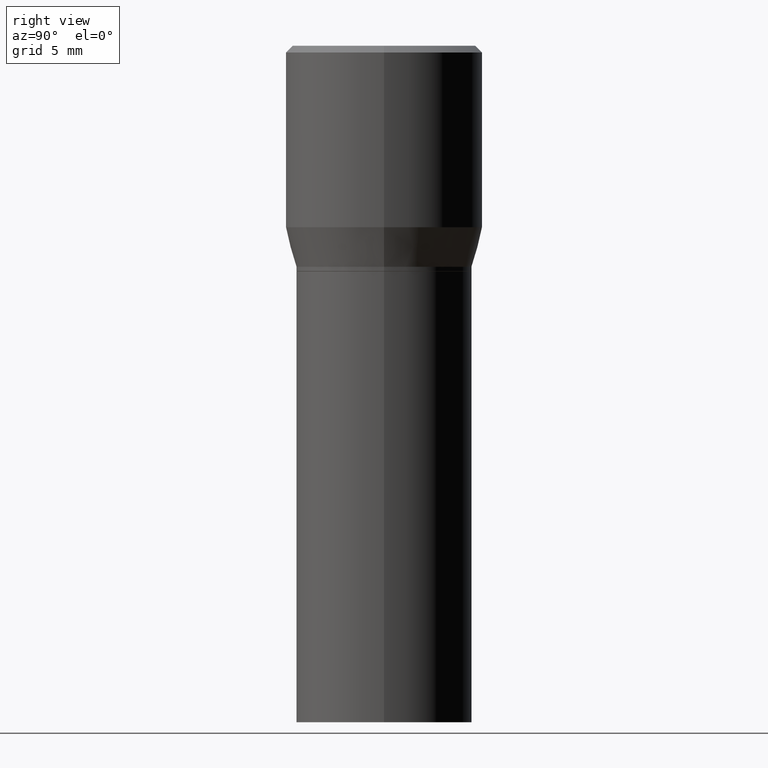
[diagram: clean part render]
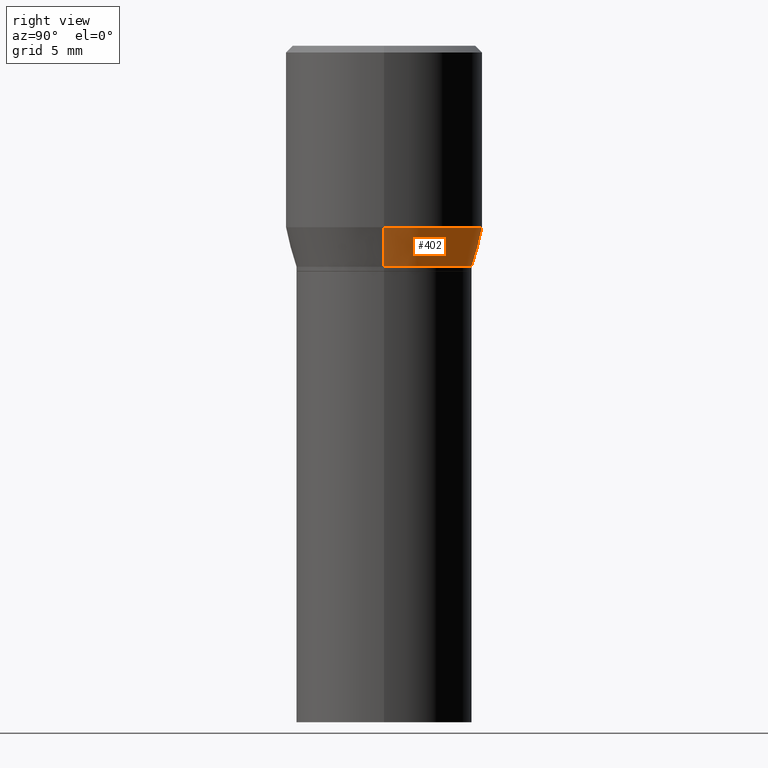
[diagram: same view with one face highlighted and labeled with its STEP entity id]
A machine part, right view. The second image highlights one B-rep face of the part: STEP entity #402.
In plain terms, the highlighted conical surface has half-angle 15 deg.
Its self-contained STEP definition (entity closure, byte-faithful):
#10 = DIRECTION ( 'NONE',  ( -0.2588190451025214611, 5.211531920934551042E-15, 0.9659258262890682012 ) ) ;
#43 = DIRECTION ( 'NONE',  ( 1.000000000000000000, -6.982962677686265922E-15, 0.000000000000000000 ) ) ;
#48 = DIRECTION ( 'NONE',  ( 0.2588190451025214611, 1.565188264969621573E-15, 0.9659258262890682012 ) ) ;
#88 = CARTESIAN_POINT ( 'NONE',  ( 1.198279715030717173E-29, -1.710825856033141537E-15, -0.4900000000000001021 ) ) ;
#101 = CIRCLE ( 'NONE', #382, 0.1952999999999999736 ) ;
#148 = DIRECTION ( 'NONE',  ( -2.445468806185136597E-29, 3.491481338843145583E-15, 1.000000000000000000 ) ) ;
#152 = VERTEX_POINT ( 'NONE', #261 ) ;
#163 = VERTEX_POINT ( 'NONE', #376 ) ;
#165 = EDGE_CURVE ( 'NONE', #152, #163, #101, .T. ) ;
#181 = CIRCLE ( 'NONE', #303, 0.2187500000000000000 ) ;
#185 = DIRECTION ( 'NONE',  ( 1.000000000000000000, -6.982962677686266711E-15, 0.000000000000000000 ) ) ;
#186 = EDGE_LOOP ( 'NONE', ( #451, #375, #238, #264 ) ) ;
#218 = LINE ( 'NONE', #371, #401 ) ;
#219 = FACE_OUTER_BOUND ( 'NONE', #186, .T. ) ;
#224 = EDGE_CURVE ( 'NONE', #152, #275, #218, .T. ) ;
#236 = EDGE_CURVE ( 'NONE', #275, #306, #181, .T. ) ;
#238 = ORIENTED_EDGE ( 'NONE', *, *, #236, .F. ) ;
#255 = CARTESIAN_POINT ( 'NONE',  ( -0.1952999999999999736, -3.231358930936662090E-16, -0.4900000000000001021 ) ) ;
#261 = CARTESIAN_POINT ( 'NONE',  ( 0.1952999999999999736, -3.074598466985269231E-15, -0.4900000000000001021 ) ) ;
#264 = ORIENTED_EDGE ( 'NONE', *, *, #224, .F. ) ;
#267 = DIRECTION ( 'NONE',  ( 1.000000000000000000, -6.982962677686265922E-15, 0.000000000000000000 ) ) ;
#275 = VERTEX_POINT ( 'NONE', #346 ) ;
#279 = CONICAL_SURFACE ( 'NONE', #413, 0.1952999999999999736, 0.2617993877991501295 ) ;
#296 = DIRECTION ( 'NONE',  ( -2.445468806185136597E-29, 3.491481338843145583E-15, 1.000000000000000000 ) ) ;
#303 = AXIS2_PLACEMENT_3D ( 'NONE', #344, #296, #185 ) ;
#306 = VERTEX_POINT ( 'NONE', #407 ) ;
#344 = CARTESIAN_POINT ( 'NONE',  ( 9.842606206466859638E-30, -1.405263310189985589E-15, -0.4024834085625100810 ) ) ;
#346 = CARTESIAN_POINT ( 'NONE',  ( 0.2187500000000000000, -2.932786395933856235E-15, -0.4024834085625100810 ) ) ;
#365 = LINE ( 'NONE', #255, #433 ) ;
#371 = CARTESIAN_POINT ( 'NONE',  ( 0.1952999999999999736, -3.074598466985269231E-15, -0.4900000000000001021 ) ) ;
#375 = ORIENTED_EDGE ( 'NONE', *, *, #386, .T. ) ;
#376 = CARTESIAN_POINT ( 'NONE',  ( -0.1952999999999999736, -8.704348440421619739E-17, -0.4900000000000001021 ) ) ;
#382 = AXIS2_PLACEMENT_3D ( 'NONE', #88, #416, #267 ) ;
#386 = EDGE_CURVE ( 'NONE', #163, #306, #365, .T. ) ;
#401 = VECTOR ( 'NONE', #48, 39.37007874015747433 ) ;
#402 = ADVANCED_FACE ( 'NONE', ( #219 ), #279, .T. ) ;
#407 = CARTESIAN_POINT ( 'NONE',  ( -0.2187500000000000000, 1.490489242852337896E-16, -0.4024834085625100810 ) ) ;
#408 = CARTESIAN_POINT ( 'NONE',  ( 1.198279715030717173E-29, -1.710825856033141537E-15, -0.4900000000000001021 ) ) ;
#413 = AXIS2_PLACEMENT_3D ( 'NONE', #408, #148, #43 ) ;
#416 = DIRECTION ( 'NONE',  ( -2.445468806185136597E-29, 3.491481338843145583E-15, 1.000000000000000000 ) ) ;
#433 = VECTOR ( 'NONE', #10, 39.37007874015747433 ) ;
#451 = ORIENTED_EDGE ( 'NONE', *, *, #165, .T. ) ;